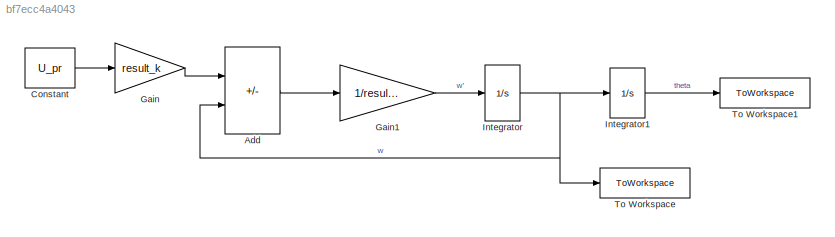
MODEL slx_bf7ecc4a4043
KIND model
CONFIG AbsTol = auto
CONFIG EnableMultiTasking = off
CONFIG FixedStep = auto
CONFIG MaxStep = 1e-3
CONFIG MinStep = auto
CONFIG RelTol = 1e-3
CONFIG SampleTimeConstraint = Unconstrained
CONFIG SolverName = VariableStepAuto
CONFIG StartTime = 0.0
CONFIG StopTime = 1
BLOCK [Sum] Add
  IconShape = rectangular
  Inputs = +-
BLOCK [Constant] Constant
  Value = U_pr
BLOCK [Gain] Gain
  Gain = result_k
BLOCK [Gain] Gain1
  Gain = 1/result_Tm
BLOCK [Integrator] Integrator
BLOCK [Integrator] Integrator1
BLOCK [ToWorkspace] To Workspace
  FixptAsFi = on
  MaxDataPoints = inf
  SampleTime = -1
  SaveFormat = Timeseries
  VariableName = omega
BLOCK [ToWorkspace] To Workspace1
  FixptAsFi = on
  MaxDataPoints = inf
  SampleTime = -1
  SaveFormat = Timeseries
  VariableName = theta
LINE Add:1 -> Gain1:1
LINE Constant:1 -> Gain:1
LINE Gain1:1 -> Integrator:1
LINE Gain:1 -> Add:1
LINE Integrator1:1 -> To Workspace1:1
NET Integrator:1 -> Add:2, Integrator1:1, To Workspace:1
note: NET lines group one-source signal fan-out (src -> all destinations, sorted); 1:1 wires keep LINE
